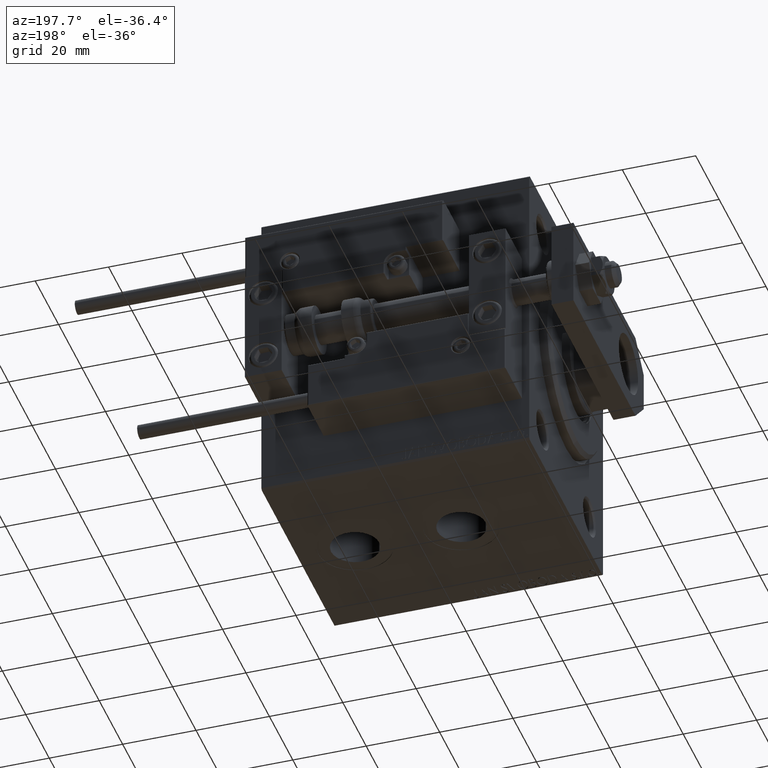
[diagram: clean part render]
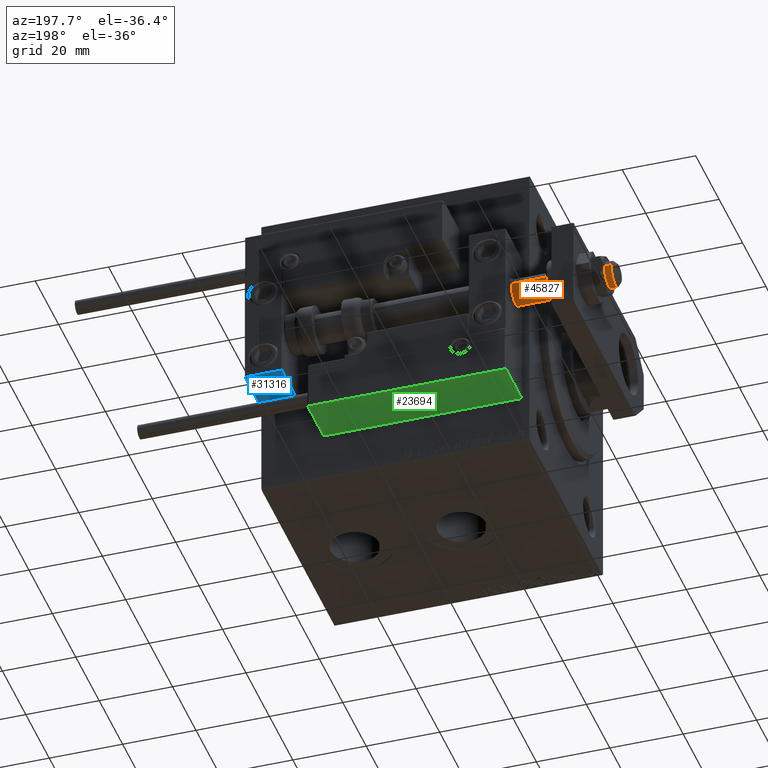
[diagram: same view with three faces highlighted in distinct colors, each labeled with its STEP entity id]
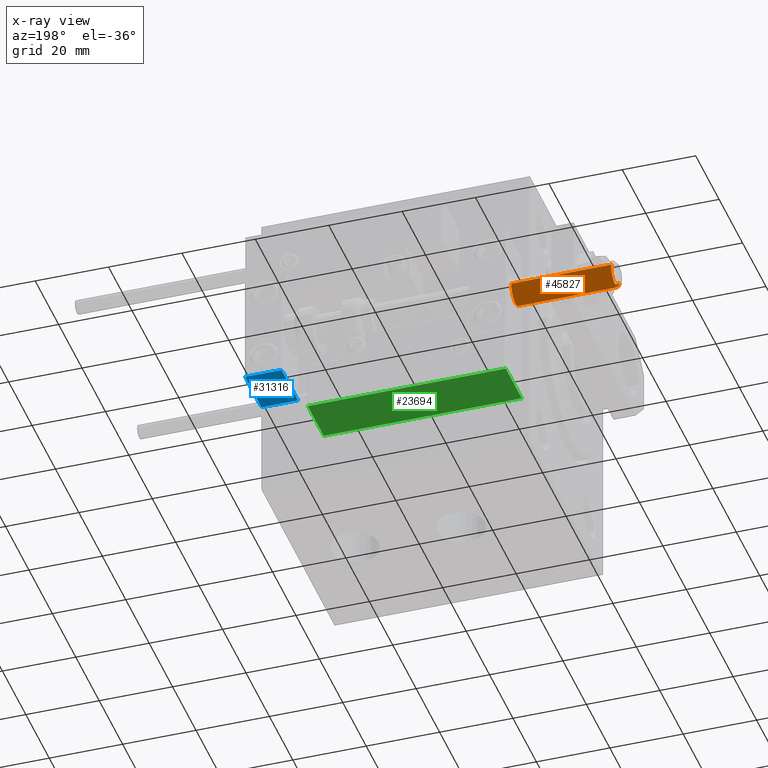
[diagram: x-ray of the same camera — body ghosted, the three highlighted faces saturated]
A machine part, auxiliary view with three faces highlighted in distinct colors.
The next image is the same camera in x-ray (body ghosted, the three faces saturated) — at least one of them is partly hidden behind the body in this view.
Their STEP definitions:

[orange] entity #45827 — the highlighted cylindrical surface (edge-blend (fillet) strip) has radius 3.5 mm, axis along (1, 0, 0).
#2810 = EDGE_CURVE ( 'NONE', #39914, #45627, #49759, .T. ) ;
#4404 = LINE ( 'NONE', #40202, #46261 ) ;
#6331 = ORIENTED_EDGE ( 'NONE', *, *, #38877, .T. ) ;
#7550 = CIRCLE ( 'NONE', #37143, 3.500000000000000000 ) ;
#9243 = DIRECTION ( 'NONE',  ( 1.000000000000000000, 0.000000000000000000, 0.000000000000000000 ) ) ;
#13537 = ORIENTED_EDGE ( 'NONE', *, *, #42248, .T. ) ;
#15734 = DIRECTION ( 'NONE',  ( 0.000000000000000000, 0.000000000000000000, 1.000000000000000000 ) ) ;
#18297 = EDGE_CURVE ( 'NONE', #26789, #23410, #4404, .T. ) ;
#18454 = CARTESIAN_POINT ( 'NONE',  ( -3.500000000000000000, 4.286263797015736595E-16, -26.69999999999999929 ) ) ;
#20965 = EDGE_LOOP ( 'NONE', ( #41124, #6331, #37141, #13537 ) ) ;
#21406 = CARTESIAN_POINT ( 'NONE',  ( 0.000000000000000000, 0.000000000000000000, -26.69999999999999929 ) ) ;
#21753 = CIRCLE ( 'NONE', #32746, 3.500000000000000000 ) ;
#22052 = AXIS2_PLACEMENT_3D ( 'NONE', #21406, #29107, #9243 ) ;
#23410 = VERTEX_POINT ( 'NONE', #29297 ) ;
#23568 = CARTESIAN_POINT ( 'NONE',  ( -3.500000000000000000, 4.286263797015736595E-16, 1.500000000000025535 ) ) ;
#23938 = CARTESIAN_POINT ( 'NONE',  ( 0.000000000000000000, 0.000000000000000000, -25.69999999999998508 ) ) ;
#24014 = DIRECTION ( 'NONE',  ( -0.000000000000000000, -0.000000000000000000, 1.000000000000000000 ) ) ;
#25655 = FACE_OUTER_BOUND ( 'NONE', #20965, .T. ) ;
#26789 = VERTEX_POINT ( 'NONE', #41267 ) ;
#29107 = DIRECTION ( 'NONE',  ( -0.000000000000000000, -0.000000000000000000, 1.000000000000000000 ) ) ;
#29297 = CARTESIAN_POINT ( 'NONE',  ( 3.500000000000000000, 0.000000000000000000, 1.500000000000025535 ) ) ;
#29913 = DIRECTION ( 'NONE',  ( 0.000000000000000000, 0.000000000000000000, -1.000000000000000000 ) ) ;
#31625 = DIRECTION ( 'NONE',  ( -1.000000000000000000, 0.000000000000000000, 0.000000000000000000 ) ) ;
#31788 = CARTESIAN_POINT ( 'NONE',  ( 0.000000000000000000, 0.000000000000000000, 1.500000000000025535 ) ) ;
#32746 = AXIS2_PLACEMENT_3D ( 'NONE', #23938, #15734, #31625 ) ;
#33092 = DIRECTION ( 'NONE',  ( 1.000000000000000000, 0.000000000000000000, 0.000000000000000000 ) ) ;
#33334 = CYLINDRICAL_SURFACE ( 'NONE', #22052, 3.500000000000000000 ) ;
#34634 = DIRECTION ( 'NONE',  ( -0.000000000000000000, -0.000000000000000000, 1.000000000000000000 ) ) ;
#37141 = ORIENTED_EDGE ( 'NONE', *, *, #18297, .T. ) ;
#37143 = AXIS2_PLACEMENT_3D ( 'NONE', #31788, #29913, #33092 ) ;
#38877 = EDGE_CURVE ( 'NONE', #39914, #26789, #21753, .T. ) ;
#39914 = VERTEX_POINT ( 'NONE', #50990 ) ;
#40202 = CARTESIAN_POINT ( 'NONE',  ( 3.500000000000000000, 0.000000000000000000, -26.69999999999999929 ) ) ;
#41124 = ORIENTED_EDGE ( 'NONE', *, *, #2810, .F. ) ;
#41267 = CARTESIAN_POINT ( 'NONE',  ( 3.500000000000000000, 0.000000000000000000, -25.69999999999998508 ) ) ;
#42248 = EDGE_CURVE ( 'NONE', #23410, #45627, #7550, .T. ) ;
#45040 = VECTOR ( 'NONE', #34634, 1000.000000000000000 ) ;
#45627 = VERTEX_POINT ( 'NONE', #23568 ) ;
#45827 = ADVANCED_FACE ( 'NONE', ( #25655 ), #33334, .T. ) ;
#46261 = VECTOR ( 'NONE', #24014, 1000.000000000000000 ) ;
#49759 = LINE ( 'NONE', #18454, #45040 ) ;
#50990 = CARTESIAN_POINT ( 'NONE',  ( -3.500000000000000000, 4.286263797015736595E-16, -25.69999999999998508 ) ) ;

[blue] entity #31316 — the highlighted planar face has unit normal (0, 0, -1).
#787 = CARTESIAN_POINT ( 'NONE',  ( 10.00000000000000000, -7.000000000000000000, -16.00000000000000711 ) ) ;
#942 = VERTEX_POINT ( 'NONE', #30652 ) ;
#4335 = LINE ( 'NONE', #36661, #50772 ) ;
#7322 = CARTESIAN_POINT ( 'NONE',  ( 10.00000000000000000, 7.000000000000000000, -16.00000000000000711 ) ) ;
#8740 = VERTEX_POINT ( 'NONE', #14597 ) ;
#9121 = CARTESIAN_POINT ( 'NONE',  ( 0.000000000000000000, -7.000000000000000000, -16.00000000000000711 ) ) ;
#9460 = ORIENTED_EDGE ( 'NONE', *, *, #11045, .F. ) ;
#9608 = DIRECTION ( 'NONE',  ( -1.000000000000000000, -0.000000000000000000, -0.000000000000000000 ) ) ;
#10753 = LINE ( 'NONE', #43613, #36107 ) ;
#11045 = EDGE_CURVE ( 'NONE', #8740, #942, #50422, .T. ) ;
#14597 = CARTESIAN_POINT ( 'NONE',  ( 10.00000000000000000, 7.000000000000000000, -16.00000000000000711 ) ) ;
#15791 = VECTOR ( 'NONE', #19216, 1000.000000000000000 ) ;
#19216 = DIRECTION ( 'NONE',  ( 0.000000000000000000, -1.000000000000000000, 0.000000000000000000 ) ) ;
#19823 = VECTOR ( 'NONE', #9608, 1000.000000000000000 ) ;
#20273 = EDGE_CURVE ( 'NONE', #8740, #25622, #27440, .T. ) ;
#20306 = EDGE_CURVE ( 'NONE', #25622, #25078, #10753, .T. ) ;
#20549 = CARTESIAN_POINT ( 'NONE',  ( 10.00000000000000000, 7.000000000000000000, -16.00000000000000711 ) ) ;
#22068 = DIRECTION ( 'NONE',  ( 0.000000000000000000, -1.000000000000000000, 0.000000000000000000 ) ) ;
#23181 = ORIENTED_EDGE ( 'NONE', *, *, #24349, .F. ) ;
#24282 = PLANE ( 'NONE',  #31766 ) ;
#24349 = EDGE_CURVE ( 'NONE', #942, #25078, #4335, .T. ) ;
#24366 = EDGE_LOOP ( 'NONE', ( #23181, #9460, #29585, #41651 ) ) ;
#25078 = VERTEX_POINT ( 'NONE', #9121 ) ;
#25239 = CARTESIAN_POINT ( 'NONE',  ( 10.00000000000000000, 7.000000000000000000, -16.00000000000000711 ) ) ;
#25622 = VERTEX_POINT ( 'NONE', #787 ) ;
#27440 = LINE ( 'NONE', #7322, #15791 ) ;
#27748 = DIRECTION ( 'NONE',  ( 0.000000000000000000, 0.000000000000000000, -1.000000000000000000 ) ) ;
#29585 = ORIENTED_EDGE ( 'NONE', *, *, #20273, .T. ) ;
#30652 = CARTESIAN_POINT ( 'NONE',  ( 0.000000000000000000, 7.000000000000000000, -16.00000000000000711 ) ) ;
#31316 = ADVANCED_FACE ( 'NONE', ( #43657 ), #24282, .T. ) ;
#31703 = DIRECTION ( 'NONE',  ( -1.000000000000000000, 0.000000000000000000, -0.000000000000000000 ) ) ;
#31766 = AXIS2_PLACEMENT_3D ( 'NONE', #20549, #27748, #31703 ) ;
#36107 = VECTOR ( 'NONE', #38594, 1000.000000000000000 ) ;
#36661 = CARTESIAN_POINT ( 'NONE',  ( 0.000000000000000000, 7.000000000000000000, -16.00000000000000711 ) ) ;
#38594 = DIRECTION ( 'NONE',  ( -1.000000000000000000, -0.000000000000000000, -0.000000000000000000 ) ) ;
#41651 = ORIENTED_EDGE ( 'NONE', *, *, #20306, .T. ) ;
#43613 = CARTESIAN_POINT ( 'NONE',  ( 10.00000000000000000, -7.000000000000000000, -16.00000000000000711 ) ) ;
#43657 = FACE_OUTER_BOUND ( 'NONE', #24366, .T. ) ;
#50422 = LINE ( 'NONE', #25239, #19823 ) ;
#50772 = VECTOR ( 'NONE', #22068, 1000.000000000000000 ) ;

[green] entity #23694 — the highlighted planar face has unit normal (0, 0, 1).
#1069 = VECTOR ( 'NONE', #17899, 1000.000000000000000 ) ;
#1771 = CARTESIAN_POINT ( 'NONE',  ( 27.00000000000006395, 20.00000000000001776, 13.70000000000000107 ) ) ;
#2747 = CARTESIAN_POINT ( 'NONE',  ( -26.99999999999993605, 20.00000000000002132, 13.70000000000000107 ) ) ;
#5495 = DIRECTION ( 'NONE',  ( -1.000000000000000000, 6.424901762877062263E-17, 0.000000000000000000 ) ) ;
#6280 = EDGE_CURVE ( 'NONE', #47517, #21841, #30096, .T. ) ;
#6372 = LINE ( 'NONE', #26492, #14369 ) ;
#6592 = ORIENTED_EDGE ( 'NONE', *, *, #44570, .F. ) ;
#12172 = EDGE_LOOP ( 'NONE', ( #6592, #51814, #45181, #31782 ) ) ;
#13422 = CARTESIAN_POINT ( 'NONE',  ( 27.00000000000006395, 20.00000000000001776, 0.000000000000000000 ) ) ;
#14369 = VECTOR ( 'NONE', #26761, 1000.000000000000000 ) ;
#17023 = VECTOR ( 'NONE', #5495, 1000.000000000000000 ) ;
#17899 = DIRECTION ( 'NONE',  ( 1.000000000000000000, -6.424901762877063495E-17, -0.000000000000000000 ) ) ;
#17923 = LINE ( 'NONE', #13422, #17023 ) ;
#19130 = DIRECTION ( 'NONE',  ( -6.424901762877063495E-17, -1.000000000000000000, 0.000000000000000000 ) ) ;
#21841 = VERTEX_POINT ( 'NONE', #40902 ) ;
#22076 = DIRECTION ( 'NONE',  ( 1.000000000000000000, -6.424901762877063495E-17, 0.000000000000000000 ) ) ;
#23634 = CARTESIAN_POINT ( 'NONE',  ( 27.00000000000006395, 20.00000000000001776, 0.000000000000000000 ) ) ;
#23694 = ADVANCED_FACE ( 'NONE', ( #27358 ), #39034, .F. ) ;
#24576 = CARTESIAN_POINT ( 'NONE',  ( -26.99999999999993605, 20.00000000000002132, 0.000000000000000000 ) ) ;
#26492 = CARTESIAN_POINT ( 'NONE',  ( -26.99999999999993605, 20.00000000000002132, 14.00000000000000000 ) ) ;
#26761 = DIRECTION ( 'NONE',  ( -0.000000000000000000, -0.000000000000000000, -1.000000000000000000 ) ) ;
#27327 = CARTESIAN_POINT ( 'NONE',  ( 27.00000000000006395, 20.00000000000001776, 14.00000000000000000 ) ) ;
#27358 = FACE_OUTER_BOUND ( 'NONE', #12172, .T. ) ;
#28603 = AXIS2_PLACEMENT_3D ( 'NONE', #50956, #19130, #22076 ) ;
#30096 = LINE ( 'NONE', #1771, #1069 ) ;
#31782 = ORIENTED_EDGE ( 'NONE', *, *, #51626, .T. ) ;
#34675 = VERTEX_POINT ( 'NONE', #23634 ) ;
#34767 = LINE ( 'NONE', #27327, #49937 ) ;
#39034 = PLANE ( 'NONE',  #28603 ) ;
#40902 = CARTESIAN_POINT ( 'NONE',  ( 27.00000000000006395, 20.00000000000001776, 13.70000000000000107 ) ) ;
#43769 = DIRECTION ( 'NONE',  ( -0.000000000000000000, -0.000000000000000000, -1.000000000000000000 ) ) ;
#44154 = EDGE_CURVE ( 'NONE', #21841, #34675, #34767, .T. ) ;
#44570 = EDGE_CURVE ( 'NONE', #47517, #51491, #6372, .T. ) ;
#45181 = ORIENTED_EDGE ( 'NONE', *, *, #44154, .T. ) ;
#47517 = VERTEX_POINT ( 'NONE', #2747 ) ;
#49937 = VECTOR ( 'NONE', #43769, 1000.000000000000000 ) ;
#50956 = CARTESIAN_POINT ( 'NONE',  ( 27.00000000000006395, 20.00000000000001776, 14.00000000000000000 ) ) ;
#51491 = VERTEX_POINT ( 'NONE', #24576 ) ;
#51626 = EDGE_CURVE ( 'NONE', #34675, #51491, #17923, .T. ) ;
#51814 = ORIENTED_EDGE ( 'NONE', *, *, #6280, .T. ) ;